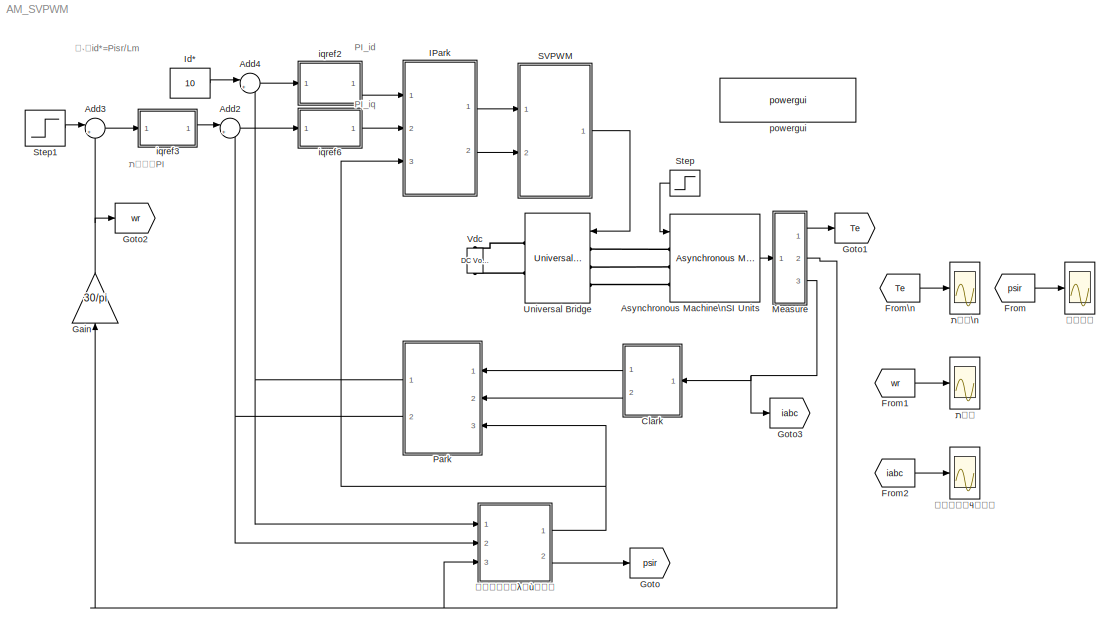
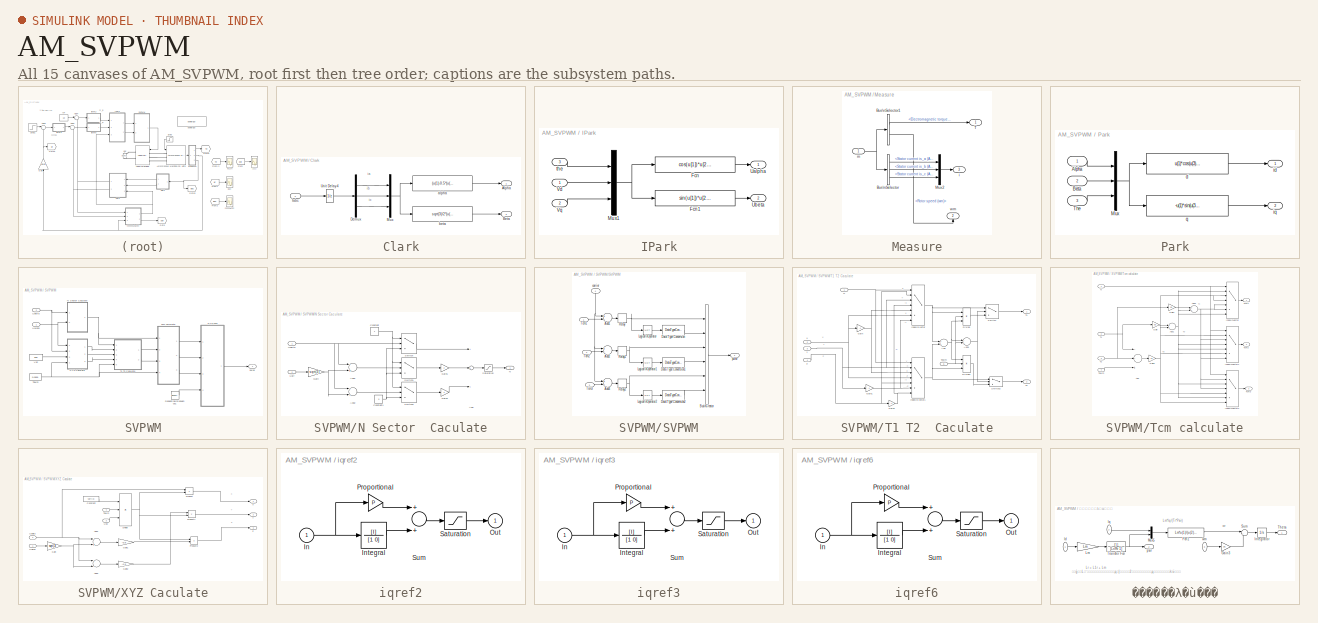
[diagram: thumbnail index - all 15 canvases of the model, root first then tree order]
MODEL AM_SVPWM
KIND model
BLOCK [Sum] Add2
  IconShape = round
  InputSameDT = off
  Inputs = |+-
  OutDataTypeStr = Inherit: Inherit via internal rule
  Ports = [2, 1]
  SID = 336
  SaturateOnIntegerOverflow = off
BLOCK [Sum] Add3
  IconShape = round
  InputSameDT = off
  Inputs = |+-
  OutDataTypeStr = Inherit: Inherit via internal rule
  Ports = [2, 1]
  SID = 337
  SaturateOnIntegerOverflow = off
BLOCK [Sum] Add4
  IconShape = round
  InputSameDT = off
  Inputs = |+-
  OutDataTypeStr = Inherit: Inherit via internal rule
  Ports = [2, 1]
  SID = 335
  SaturateOnIntegerOverflow = off
BLOCK [Reference] Asynchronous Machine\nSI Units  REF=powerlib/Machines/Asynchronous Machine\nSI Units
  Cage1 = [ 0.022 0.226/377]
  Cage2 = [ 0.022 0.226/377]
  InitialConditions = [ 1,0   0,0,0   0,0,0 ]
  IterativeModel = Trapezoidal non iterative
  Lm = 0.069
  LoadFlowParameters = 0
  MeasurementBus = off
  Mechanical = [0.19 0.005752 2]
  MechanicalLoad = Torque Tm
  NominalParameters = [3730 380 50]
  Pmec = 0
  PolePairs = 2
  Ports = [1, 1, 0, 0, 0, 3]
  PresetModel = No
  ReferenceFrame = Rotor
  Rotor = [0.816 0.002]
  RotorType = Squirrel-cage
  SID = 5
  Saturation = [9.9249,19.6672,38.0377,51.3988,69.2824,105.1337,152.5532,214.2421,303.1917;230, 322, 414, 460, 506, 552, 598, 644, 690]
  ShowDetailedParameters = on
  SimulateSaturation = off
  SourceBlock = powerlib/Machines/Asynchronous Machine\nSI Units
  SourceType = Asynchronous Machine
  Stator = [0.435 0.01]
  TsBlock = -1
  TsPowergui = 0
  Units = SI
BLOCK [SubSystem] Clark
  Ports = [1, 2]
  RequestExecContextInheritance = off
  SID = 303
  Variant = off
BLOCK [Outport] Clark/Alpha
  IconDisplay = Port number
  SID = 310
BLOCK [Outport] Clark/Beta
  IconDisplay = Port number
  Port = 2
  SID = 311
BLOCK [Demux] Clark/Demux
  DisplayOption = bar
  Outputs = 3
  Ports = [1, 3]
  SID = 313
BLOCK [Inport] Clark/Iabc
  IconDisplay = Port number
  SID = 312
BLOCK [Mux] Clark/Mux
  DisplayOption = bar
  Inputs = 3
  Ports = [3, 1]
  SID = 307
BLOCK [UnitDelay] Clark/Unit Delay4
  SID = 314
  SampleTime = 1e-05
BLOCK [Fcn] Clark/alpha
  Expr = (u(1)-0.5*(u(2)+u(3)))*2/3
  SID = 308
BLOCK [Fcn] Clark/beta
  Expr = sqrt(3)/2*(u(2)-u(3))*2/3
  SID = 309
BLOCK [From] From
  GotoTag = psir
  SID = 424
BLOCK [From] From1
  GotoTag = wr
  SID = 430
BLOCK [From] From2
  GotoTag = iabc
  SID = 433
BLOCK [From] From\n
  GotoTag = Te
  SID = 428
BLOCK [Gain] Gain
  Gain = 30/pi
  SID = 21
  SaturateOnIntegerOverflow = off
BLOCK [Goto] Goto
  GotoTag = psir
  SID = 421
BLOCK [Goto] Goto1
  GotoTag = Te
  SID = 427
BLOCK [Goto] Goto2
  GotoTag = wr
  SID = 432
BLOCK [Goto] Goto3
  GotoTag = iabc
  SID = 438
BLOCK [SubSystem] IPark
  Ports = [3, 2]
  RequestExecContextInheritance = off
  SID = 291
  Variant = off
BLOCK [Fcn] IPark/Fcn
  Expr = cos(u[1])*u[2]-sin(u[1])*u[3]
  SID = 294
BLOCK [Fcn] IPark/Fcn1
  Expr = sin(u[1])*u[2]+cos(u[1])*u[3]
  SID = 295
BLOCK [Mux] IPark/Mux1
  DisplayOption = bar
  Inputs = 3
  Ports = [3, 1]
  SID = 297
BLOCK [Outport] IPark/Ualpha
  IconDisplay = Port number
  SID = 298
BLOCK [Outport] IPark/Ubeta
  IconDisplay = Port number
  Port = 2
  SID = 299
BLOCK [Inport] IPark/Vd
  IconDisplay = Port number
  SID = 293
BLOCK [Inport] IPark/Vq
  IconDisplay = Port number
  Port = 2
  SID = 292
BLOCK [Inport] IPark/the
  IconDisplay = Port number
  Port = 3
  SID = 300
BLOCK [Constant] Id*
  SID = 36
  Value = 10
BLOCK [SubSystem] Measure
  Ports = [1, 3]
  RequestExecContextInheritance = off
  SID = 384
  Variant = off
BLOCK [BusSelector] Measure/Bus\nSelector
  OutputSignals = Stator measurements.Stator current is_a (A),Stator measurements.Stator current is_b (A),Stator measurements.Stator current is_c (A)
  Ports = [1, 3]
  SID = 244
BLOCK [BusSelector] Measure/Bus\nSelector1
  OutputSignals = Mechanical.Electromagnetic torque Te (N*m),Mechanical.Rotor speed (wm)
  Ports = [1, 2]
  SID = 332
BLOCK [Mux] Measure/Mux2
  DisplayOption = bar
  Inputs = 3
  Ports = [3, 1]
  SID = 246
BLOCK [Outport] Measure/T
  IconDisplay = Port number
  SID = 386
BLOCK [Outport] Measure/i
  IconDisplay = Port number
  Port = 3
  SID = 387
BLOCK [Inport] Measure/m
  IconDisplay = Port number
  SID = 385
BLOCK [Outport] Measure/wm
  IconDisplay = Port number
  Port = 2
  SID = 388
BLOCK [SubSystem] Park
  Ports = [3, 2]
  RequestExecContextInheritance = off
  SID = 268
  Variant = off
BLOCK [Inport] Park/Alpha
  IconDisplay = Port number
  SID = 269
BLOCK [Inport] Park/Beta
  IconDisplay = Port number
  Port = 2
  SID = 270
BLOCK [Mux] Park/Mux
  DisplayOption = bar
  Inputs = 3
  Ports = [3, 1]
  SID = 272
BLOCK [Inport] Park/The
  IconDisplay = Port number
  Port = 3
  SID = 271
BLOCK [Fcn] Park/d
  Expr = u(1)*cos(u(3))+u(2)*sin(u(3))
  SID = 273
BLOCK [Outport] Park/id
  IconDisplay = Port number
  SID = 275
BLOCK [Outport] Park/iq
  IconDisplay = Port number
  Port = 2
  SID = 276
BLOCK [Fcn] Park/q
  Expr = -u(1)*sin(u(3))+u(2)*cos(u(3))
  SID = 274
BLOCK [SubSystem] SVPWM
  Ports = [2, 1]
  RequestExecContextInheritance = off
  SID = 55
  Variant = off
BLOCK [SubSystem] SVPWM/N Sector  Caculate
  Ports = [2, 1]
  RequestExecContextInheritance = off
  SID = 58
  TreatAsAtomicUnit = on
  Variant = off
BLOCK [Sum] SVPWM/N Sector  Caculate/Add
  InputSameDT = off
  Inputs = +++
  OutDataTypeStr = Inherit: Inherit via internal rule
  Ports = [3, 1]
  SID = 61
  SaturateOnIntegerOverflow = off
BLOCK [Sum] SVPWM/N Sector  Caculate/Add1
  InputSameDT = off
  Inputs = -+
  OutDataTypeStr = Inherit: Inherit via internal rule
  Ports = [2, 1]
  SID = 62
  SaturateOnIntegerOverflow = off
BLOCK [Sum] SVPWM/N Sector  Caculate/Add2
  InputSameDT = off
  Inputs = --
  OutDataTypeStr = Inherit: Inherit via internal rule
  Ports = [2, 1]
  SID = 63
  SaturateOnIntegerOverflow = off
BLOCK [Constant] SVPWM/N Sector  Caculate/Constant
  SID = 64
BLOCK [Constant] SVPWM/N Sector  Caculate/Constant1
  SID = 65
  Value = 0
BLOCK [Gain] SVPWM/N Sector  Caculate/Gain
  Gain = sqrt(3)
  OutDataTypeStr = Inherit: Inherit via internal rule
  ParamDataTypeStr = Inherit: Inherit via internal rule
  SID = 66
  SaturateOnIntegerOverflow = off
BLOCK [Gain] SVPWM/N Sector  Caculate/Gain1
  Gain = 2
  OutDataTypeStr = Inherit: Inherit via internal rule
  ParamDataTypeStr = Inherit: Inherit via internal rule
  SID = 67
  SaturateOnIntegerOverflow = off
BLOCK [Gain] SVPWM/N Sector  Caculate/Gain2
  Gain = 4
  OutDataTypeStr = Inherit: Inherit via internal rule
  ParamDataTypeStr = Inherit: Inherit via internal rule
  SID = 68
  SaturateOnIntegerOverflow = off
BLOCK [Outport] SVPWM/N Sector  Caculate/N
  IconDisplay = Port number
  SID = 73
BLOCK [Saturate] SVPWM/N Sector  Caculate/Saturation
  InputPortMap = u0
  LowerLimit = 1
  Ports = [1, 1]
  SID = 69
  UpperLimit = 6
BLOCK [Switch] SVPWM/N Sector  Caculate/Switch
  InputSameDT = off
  SID = 70
  SaturateOnIntegerOverflow = off
BLOCK [Switch] SVPWM/N Sector  Caculate/Switch1
  InputSameDT = off
  SID = 71
  SaturateOnIntegerOverflow = off
BLOCK [Switch] SVPWM/N Sector  Caculate/Switch2
  InputSameDT = off
  SID = 72
  SaturateOnIntegerOverflow = off
BLOCK [Inport] SVPWM/N Sector  Caculate/Ualf
  IconDisplay = Port number
  Port = 2
  SID = 60
BLOCK [Inport] SVPWM/N Sector  Caculate/Ubelta
  IconDisplay = Port number
  SID = 59
BLOCK [Reference] SVPWM/Repeating\nSequence1  REF=simulink/Sources/Repeating\nSequence
  Ports = [0, 1]
  SID = 74
  SourceBlock = simulink/Sources/Repeating\nSequence
  SourceType = Repeating table
  rep_seq_t = [0 0.00005 0.0001]
  rep_seq_y = [0 0.00005 0]
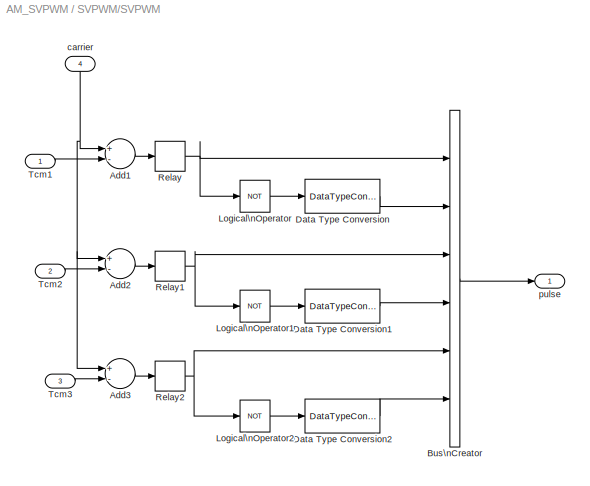
BLOCK [SubSystem] SVPWM/SVPWM
  Ports = [4, 1]
  RequestExecContextInheritance = off
  SID = 75
  TreatAsAtomicUnit = on
  Variant = off
BLOCK [Sum] SVPWM/SVPWM/Add1
  InputSameDT = off
  Inputs = +-
  OutDataTypeStr = Inherit: Inherit via internal rule
  Ports = [2, 1]
  SID = 80
  SaturateOnIntegerOverflow = off
BLOCK [Sum] SVPWM/SVPWM/Add2
  InputSameDT = off
  Inputs = +-
  OutDataTypeStr = Inherit: Inherit via internal rule
  Ports = [2, 1]
  SID = 81
  SaturateOnIntegerOverflow = off
BLOCK [Sum] SVPWM/SVPWM/Add3
  InputSameDT = off
  Inputs = +-
  OutDataTypeStr = Inherit: Inherit via internal rule
  Ports = [2, 1]
  SID = 82
  SaturateOnIntegerOverflow = off
BLOCK [BusCreator] SVPWM/SVPWM/Bus\nCreator
  DisplayOption = bar
  InheritFromInputs = on
  Inputs = 6
  Ports = [6, 1]
  SID = 83
BLOCK [DataTypeConversion] SVPWM/SVPWM/Data Type Conversion
  OutDataTypeStr = double
  RndMeth = Floor
  SID = 84
  SaturateOnIntegerOverflow = off
BLOCK [DataTypeConversion] SVPWM/SVPWM/Data Type Conversion1
  OutDataTypeStr = double
  RndMeth = Floor
  SID = 85
  SaturateOnIntegerOverflow = off
BLOCK [DataTypeConversion] SVPWM/SVPWM/Data Type Conversion2
  OutDataTypeStr = double
  RndMeth = Floor
  SID = 86
  SaturateOnIntegerOverflow = off
BLOCK [Logic] SVPWM/SVPWM/Logical\nOperator
  AllPortsSameDT = off
  Operator = NOT
  OutDataTypeStr = boolean
  Ports = [1, 1]
  SID = 87
BLOCK [Logic] SVPWM/SVPWM/Logical\nOperator1
  AllPortsSameDT = off
  Operator = NOT
  OutDataTypeStr = boolean
  Ports = [1, 1]
  SID = 88
BLOCK [Logic] SVPWM/SVPWM/Logical\nOperator2
  AllPortsSameDT = off
  Operator = NOT
  OutDataTypeStr = boolean
  Ports = [1, 1]
  SID = 89
BLOCK [Relay] SVPWM/SVPWM/Relay
  InputProcessing = Elements as channels (sample based)
  SID = 90
BLOCK [Relay] SVPWM/SVPWM/Relay1
  InputProcessing = Elements as channels (sample based)
  SID = 91
BLOCK [Relay] SVPWM/SVPWM/Relay2
  InputProcessing = Elements as channels (sample based)
  SID = 92
BLOCK [Inport] SVPWM/SVPWM/Tcm1
  IconDisplay = Port number
  SID = 76
BLOCK [Inport] SVPWM/SVPWM/Tcm2
  IconDisplay = Port number
  Port = 2
  SID = 77
BLOCK [Inport] SVPWM/SVPWM/Tcm3
  IconDisplay = Port number
  Port = 3
  SID = 78
BLOCK [Inport] SVPWM/SVPWM/carrier
  IconDisplay = Port number
  Port = 4
  SID = 79
BLOCK [Outport] SVPWM/SVPWM/pulse
  IconDisplay = Port number
  SID = 93
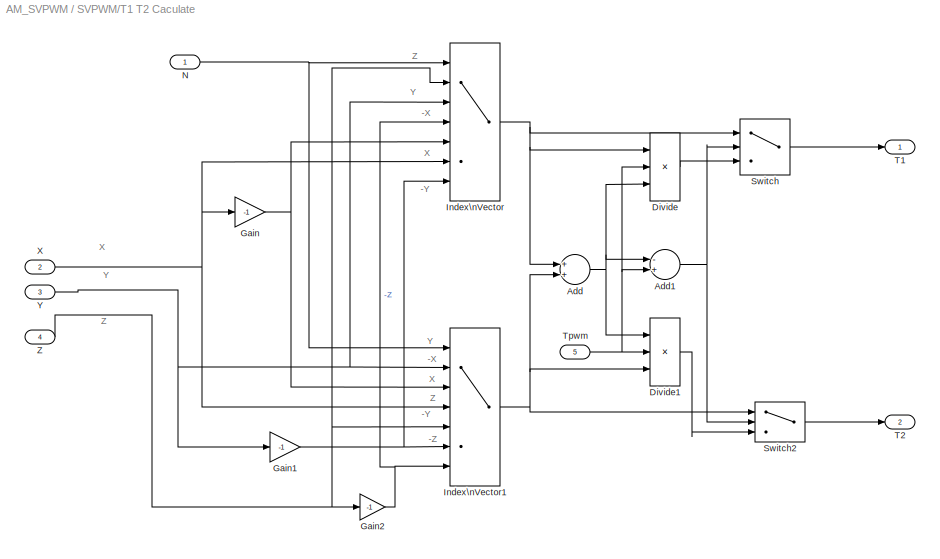
BLOCK [SubSystem] SVPWM/T1 T2  Caculate
  Ports = [5, 2]
  RequestExecContextInheritance = off
  SID = 94
  TreatAsAtomicUnit = on
  Variant = off
BLOCK [Sum] SVPWM/T1 T2  Caculate/Add
  InputSameDT = off
  OutDataTypeStr = Inherit: Inherit via internal rule
  Ports = [2, 1]
  SID = 100
  SaturateOnIntegerOverflow = off
BLOCK [Sum] SVPWM/T1 T2  Caculate/Add1
  InputSameDT = off
  Inputs = -+
  OutDataTypeStr = Inherit: Inherit via internal rule
  Ports = [2, 1]
  SID = 101
  SaturateOnIntegerOverflow = off
BLOCK [Product] SVPWM/T1 T2  Caculate/Divide
  InputSameDT = off
  Inputs = **/
  OutDataTypeStr = Inherit: Inherit via internal rule
  Ports = [3, 1]
  RndMeth = Floor
  SID = 102
  SaturateOnIntegerOverflow = off
BLOCK [Product] SVPWM/T1 T2  Caculate/Divide1
  InputSameDT = off
  Inputs = /**
  OutDataTypeStr = Inherit: Inherit via internal rule
  Ports = [3, 1]
  RndMeth = Floor
  SID = 103
  SaturateOnIntegerOverflow = off
BLOCK [Gain] SVPWM/T1 T2  Caculate/Gain
  Gain = -1
  OutDataTypeStr = Inherit: Inherit via internal rule
  ParamDataTypeStr = Inherit: Inherit via internal rule
  SID = 104
  SaturateOnIntegerOverflow = off
BLOCK [Gain] SVPWM/T1 T2  Caculate/Gain1
  Gain = -1
  OutDataTypeStr = Inherit: Inherit via internal rule
  ParamDataTypeStr = Inherit: Inherit via internal rule
  SID = 105
  SaturateOnIntegerOverflow = off
BLOCK [Gain] SVPWM/T1 T2  Caculate/Gain2
  Gain = -1
  OutDataTypeStr = Inherit: Inherit via internal rule
  ParamDataTypeStr = Inherit: Inherit via internal rule
  SID = 106
  SaturateOnIntegerOverflow = off
BLOCK [MultiPortSwitch] SVPWM/T1 T2  Caculate/Index\nVector
  InputSameDT = off
  Inputs = 6
  Ports = [7, 1]
  SID = 107
  SaturateOnIntegerOverflow = off
BLOCK [MultiPortSwitch] SVPWM/T1 T2  Caculate/Index\nVector1
  InputSameDT = off
  Inputs = 6
  Ports = [7, 1]
  SID = 108
  SaturateOnIntegerOverflow = off
BLOCK [Inport] SVPWM/T1 T2  Caculate/N
  IconDisplay = Port number
  SID = 95
BLOCK [Switch] SVPWM/T1 T2  Caculate/Switch
  Criteria = u2 > Threshold
  InputSameDT = off
  SID = 109
  SaturateOnIntegerOverflow = off
BLOCK [Switch] SVPWM/T1 T2  Caculate/Switch2
  Criteria = u2 > Threshold
  InputSameDT = off
  SID = 110
  SaturateOnIntegerOverflow = off
BLOCK [Outport] SVPWM/T1 T2  Caculate/T1
  IconDisplay = Port number
  SID = 111
BLOCK [Outport] SVPWM/T1 T2  Caculate/T2
  IconDisplay = Port number
  Port = 2
  SID = 112
BLOCK [Inport] SVPWM/T1 T2  Caculate/Tpwm
  IconDisplay = Port number
  Port = 5
  SID = 99
BLOCK [Inport] SVPWM/T1 T2  Caculate/X
  IconDisplay = Port number
  Port = 2
  SID = 96
BLOCK [Inport] SVPWM/T1 T2  Caculate/Y
  IconDisplay = Port number
  Port = 3
  SID = 97
BLOCK [Inport] SVPWM/T1 T2  Caculate/Z
  IconDisplay = Port number
  Port = 4
  SID = 98
BLOCK [SubSystem] SVPWM/Tcm calculate
  Ports = [4, 3]
  RequestExecContextInheritance = off
  SID = 127
  TreatAsAtomicUnit = on
  Variant = off
BLOCK [Sum] SVPWM/Tcm calculate/Add
  InputSameDT = off
  Inputs = --+
  OutDataTypeStr = Inherit: Inherit via internal rule
  Ports = [3, 1]
  SID = 132
  SaturateOnIntegerOverflow = off
BLOCK [Sum] SVPWM/Tcm calculate/Add1
  InputSameDT = off
  OutDataTypeStr = Inherit: Inherit via internal rule
  Ports = [2, 1]
  SID = 133
  SaturateOnIntegerOverflow = off
BLOCK [Sum] SVPWM/Tcm calculate/Add2
  InputSameDT = off
  OutDataTypeStr = Inherit: Inherit via internal rule
  Ports = [2, 1]
  SID = 134
  SaturateOnIntegerOverflow = off
BLOCK [Gain] SVPWM/Tcm calculate/Gain
  Gain = 0.5
  OutDataTypeStr = Inherit: Inherit via internal rule
  ParamDataTypeStr = Inherit: Inherit via internal rule
  SID = 135
  SaturateOnIntegerOverflow = off
BLOCK [Gain] SVPWM/Tcm calculate/Gain1
  Gain = 0.5
  OutDataTypeStr = Inherit: Inherit via internal rule
  ParamDataTypeStr = Inherit: Inherit via internal rule
  SID = 136
  SaturateOnIntegerOverflow = off
BLOCK [Gain] SVPWM/Tcm calculate/Gain2
  Gain = 1/4
  OutDataTypeStr = Inherit: Inherit via internal rule
  ParamDataTypeStr = Inherit: Inherit via internal rule
  SID = 137
  SaturateOnIntegerOverflow = off
BLOCK [MultiPortSwitch] SVPWM/Tcm calculate/Index\nVector
  InputSameDT = off
  Inputs = 6
  Ports = [7, 1]
  SID = 138
  SaturateOnIntegerOverflow = off
BLOCK [MultiPortSwitch] SVPWM/Tcm calculate/Index\nVector1
  InputSameDT = off
  Inputs = 6
  Ports = [7, 1]
  SID = 139
  SaturateOnIntegerOverflow = off
BLOCK [MultiPortSwitch] SVPWM/Tcm calculate/Index\nVector2
  InputSameDT = off
  Inputs = 6
  Ports = [7, 1]
  SID = 140
  SaturateOnIntegerOverflow = off
BLOCK [Inport] SVPWM/Tcm calculate/N
  IconDisplay = Port number
  SID = 128
BLOCK [Inport] SVPWM/Tcm calculate/T1
  IconDisplay = Port number
  Port = 2
  SID = 129
BLOCK [Inport] SVPWM/Tcm calculate/T2
  IconDisplay = Port number
  Port = 3
  SID = 130
BLOCK [Outport] SVPWM/Tcm calculate/Tcm1
  IconDisplay = Port number
  SID = 141
BLOCK [Outport] SVPWM/Tcm calculate/Tcm2
  IconDisplay = Port number
  Port = 2
  SID = 142
BLOCK [Outport] SVPWM/Tcm calculate/Tcm3
  IconDisplay = Port number
  Port = 3
  SID = 143
BLOCK [Inport] SVPWM/Tcm calculate/Tpwm
  IconDisplay = Port number
  Port = 4
  SID = 131
BLOCK [Constant] SVPWM/Tpwm
  SID = 147
  Value = 0.0001
BLOCK [Inport] SVPWM/Ualpha
  IconDisplay = Port number
  SID = 56
BLOCK [Inport] SVPWM/Ubelta
  IconDisplay = Port number
  Port = 2
  SID = 57
BLOCK [Constant] SVPWM/Vdc
  SID = 148
  Value = 600
BLOCK [SubSystem] SVPWM/XYZ Caculate
  Ports = [4, 3]
  RequestExecContextInheritance = off
  SID = 149
  TreatAsAtomicUnit = on
  Variant = off
BLOCK [Sum] SVPWM/XYZ Caculate/Add1
  InputSameDT = off
  Inputs = -+
  OutDataTypeStr = Inherit: Inherit via internal rule
  Ports = [2, 1]
  SID = 154
  SaturateOnIntegerOverflow = off
BLOCK [Sum] SVPWM/XYZ Caculate/Add2
  InputSameDT = off
  Inputs = --
  OutDataTypeStr = Inherit: Inherit via internal rule
  Ports = [2, 1]
  SID = 155
  SaturateOnIntegerOverflow = off
BLOCK [Constant] SVPWM/XYZ Caculate/Constant
  SID = 156
  Value = sqrt(3)
BLOCK [Product] SVPWM/XYZ Caculate/Divide
  InputSameDT = off
  Inputs = **/
  OutDataTypeStr = Inherit: Inherit via internal rule
  Ports = [3, 1]
  RndMeth = Floor
  SID = 157
  SaturateOnIntegerOverflow = off
BLOCK [Gain] SVPWM/XYZ Caculate/Gain
  Gain = sqrt(3)
  OutDataTypeStr = Inherit: Inherit via internal rule
  ParamDataTypeStr = Inherit: Inherit via internal rule
  SID = 158
  SaturateOnIntegerOverflow = off
BLOCK [Gain] SVPWM/XYZ Caculate/Gain1
  Gain = -0.5
  OutDataTypeStr = Inherit: Inherit via internal rule
  ParamDataTypeStr = Inherit: Inherit via internal rule
  SID = 159
  SaturateOnIntegerOverflow = off
BLOCK [Gain] SVPWM/XYZ Caculate/Gain2
  Gain = -0.5
  OutDataTypeStr = Inherit: Inherit via internal rule
  ParamDataTypeStr = Inherit: Inherit via internal rule
  SID = 160
  SaturateOnIntegerOverflow = off
BLOCK [Product] SVPWM/XYZ Caculate/Product
  InputSameDT = off
  OutDataTypeStr = Inherit: Inherit via internal rule
  Ports = [2, 1]
  RndMeth = Floor
  SID = 161
  SaturateOnIntegerOverflow = off
BLOCK [Product] SVPWM/XYZ Caculate/Product1
  InputSameDT = off
  OutDataTypeStr = Inherit: Inherit via internal rule
  Ports = [2, 1]
  RndMeth = Floor
  SID = 162
  SaturateOnIntegerOverflow = off
BLOCK [Product] SVPWM/XYZ Caculate/Product2
  InputSameDT = off
  OutDataTypeStr = Inherit: Inherit via internal rule
  Ports = [2, 1]
  RndMeth = Floor
  SID = 163
  SaturateOnIntegerOverflow = off
BLOCK [Inport] SVPWM/XYZ Caculate/Tpwm
  IconDisplay = Port number
  Port = 4
  SID = 153
BLOCK [Inport] SVPWM/XYZ Caculate/Ualfpa
  IconDisplay = Port number
  SID = 150
BLOCK [Inport] SVPWM/XYZ Caculate/Ubelta
  IconDisplay = Port number
  Port = 2
  SID = 151
BLOCK [Inport] SVPWM/XYZ Caculate/Udc
  IconDisplay = Port number
  Port = 3
  SID = 152
BLOCK [Outport] SVPWM/XYZ Caculate/X
  IconDisplay = Port number
  SID = 164
BLOCK [Outport] SVPWM/XYZ Caculate/Y
  IconDisplay = Port number
  Port = 2
  SID = 165
BLOCK [Outport] SVPWM/XYZ Caculate/Z
  IconDisplay = Port number
  Port = 3
  SID = 166
BLOCK [Outport] SVPWM/pulse
  IconDisplay = Port number
  SID = 170
BLOCK [Step] Step
  After = 20
  SID = 179
  SampleTime = 0
  Time = 0.5
BLOCK [Step] Step1
  After = 1000
  Before = 1000
  SID = 182
  SampleTime = 0
  Time = 0
BLOCK [Reference] Universal Bridge  REF=powerlib/Power\nElectronics/Universal Bridge
  Arms = 3
  Device = IGBT / Diodes
  ForwardVoltage = 0
  ForwardVoltages = [  0  0  ]
  GTOparameters = [ 10e-6 , 20e-6 ]
  IGBTparameters = [ 1e-6 , 2e-6 ]
  Lon = 0
  Measurements = None
  Measurements_2 = None
  Ports = [1, 0, 0, 0, 0, 3, 2]
  Ron = 1e-3
  SID = 301
  SnubberCapacitance = inf
  SnubberResistance = 1e5
  SourceBlock = powerlib/Power\nElectronics/Universal Bridge
  SourceType = Universal Bridge
  converterType = Rectifier
BLOCK [Reference] Vdc  REF=powerlib/Electrical\nSources/DC Voltage Source
  Amplitude = 600
  Measurements = None
  Ports = [0, 0, 0, 0, 0, 1, 1]
  SID = 302
  SourceBlock = powerlib/Electrical\nSources/DC Voltage Source
  SourceType = DC Voltage Source
BLOCK [SubSystem] iqref2
  Ports = [1, 1]
  RequestExecContextInheritance = off
  SID = 185
  Variant = off
BLOCK [Inport] iqref2/In
  IconDisplay = Port number
  SID = 186
BLOCK [TransferFcn] iqref2/Integral
  Denominator = [1 0]
  Numerator = [I]
  SID = 187
BLOCK [Outport] iqref2/Out
  IconDisplay = Port number
  InitialOutput = 0
  SID = 191
BLOCK [Gain] iqref2/Proportional
  Gain = P
  SID = 188
BLOCK [Saturate] iqref2/Saturation
  InputPortMap = u0
  LowerLimit = min
  Ports = [1, 1]
  SID = 189
  UpperLimit = max
BLOCK [Sum] iqref2/Sum
  Ports = [2, 1]
  SID = 190
BLOCK [SubSystem] iqref3
  Ports = [1, 1]
  RequestExecContextInheritance = off
  SID = 192
  Variant = off
BLOCK [Inport] iqref3/In
  IconDisplay = Port number
  SID = 193
BLOCK [TransferFcn] iqref3/Integral
  Denominator = [1 0]
  Numerator = [I]
  SID = 194
BLOCK [Outport] iqref3/Out
  IconDisplay = Port number
  InitialOutput = 0
  SID = 198
BLOCK [Gain] iqref3/Proportional
  Gain = P
  SID = 195
BLOCK [Saturate] iqref3/Saturation
  InputPortMap = u0
  LowerLimit = min
  Ports = [1, 1]
  SID = 196
  UpperLimit = max
BLOCK [Sum] iqref3/Sum
  Ports = [2, 1]
  SID = 197
BLOCK [SubSystem] iqref6
  Ports = [1, 1]
  RequestExecContextInheritance = off
  SID = 199
  Variant = off
BLOCK [Inport] iqref6/In
  IconDisplay = Port number
  SID = 200
BLOCK [TransferFcn] iqref6/Integral
  Denominator = [1 0]
  Numerator = [I]
  SID = 201
BLOCK [Outport] iqref6/Out
  IconDisplay = Port number
  InitialOutput = 0
  SID = 205
BLOCK [Gain] iqref6/Proportional
  Gain = P
  SID = 202
BLOCK [Saturate] iqref6/Saturation
  InputPortMap = u0
  LowerLimit = min
  Ports = [1, 1]
  SID = 203
  UpperLimit = max
BLOCK [Sum] iqref6/Sum
  Ports = [2, 1]
  SID = 204
BLOCK [Reference] powergui  REF=powerlib/powergui
  DisableRonSwitches = off
  DisableSnubberDevices = off
  DisableVfSwitches = off
  DisplayEquations = off
  DisplayStyle = 1
  EnableUseOfTLC = off
  ErrMax = 1e-4
  ExternalGateDelay = off
  Frange = [0:2:500]
  FreqAxis = off
  FunctionMessages = off
  HookPort = off
  Interpol = off
  Iterations = 50
  MaxFrequency = 1000
  Pbase = 100e6
  Ports = []
  Priority = 1
  ResistiveCurrentMeasurement = off
  RestoreLinks = warning
  RmsSteady = 1
  SID = 206
  SPID = off
  SampleTime = 1e-5
  ShowGrid = off
  SolverType = Tustin
  SourceBlock = powerlib/powergui
  SourceType = PSB option menu block
  StartTime = 0.0
  SwTol = 0
  Ts = 0
  UnitsV = kV
  UnitsW = MW
  Xlog = on
  Ylog = off
  ZoomFFT = on
  buscounter = 0
  cycles = 1
  display = off
  echomessages = off
  frequency = 60
  frequencyindice = 0
  frequencyindicesteady = 1
  fundamental = 60
  methode = off
  save = off
  structure = 0
  variable = ZData
  x0status = blocks
BLOCK [Scope] ת��
  Ports = [1]
  SID = 436
  ScopeSpecificationString = Simulink.scopes.TimeScopeBlockCfg('CurrentConfiguration', extmgr.ConfigurationSet(extmgr.Configuration('Core','General UI',true,'FigureColor',[1 1 1]),extmgr.Configuration('Core','Source UI',true),extmgr.Configuration('Sources','WiredSimulink',true,'DataLoggingVariableName','ScopeData2','DataLoggingSaveFormat','StructureWithTime','DataLoggingDecimation','1','DataLoggingDecimateData',true),extmgr.C...<+2568ch>
BLOCK [Scope] ת��\n
  Ports = [1]
  SID = 429
  ScopeSpecificationString = Simulink.scopes.TimeScopeBlockCfg('CurrentConfiguration', extmgr.ConfigurationSet(extmgr.Configuration('Core','General UI',true,'FigureColor',[1 1 1]),extmgr.Configuration('Core','Source UI',true),extmgr.Configuration('Sources','WiredSimulink',true,'DataLoggingVariableName','ScopeData1','DataLoggingSaveFormat','StructureWithTime','DataLoggingDecimation','1','DataLoggingDecimateData',true),extmgr.C...<+2602ch>
BLOCK [Scope] ���ඨ�ӵ���
  Ports = [1]
  SID = 437
  ScopeSpecificationString = Simulink.scopes.TimeScopeBlockCfg('CurrentConfiguration', extmgr.ConfigurationSet(extmgr.Configuration('Core','General UI',true,'FigureColor',[1 1 1]),extmgr.Configuration('Core','Source UI',true),extmgr.Configuration('Sources','WiredSimulink',true,'DataLoggingVariableName','ScopeData3','DataLoggingSaveFormat','StructureWithTime','DataLoggingDecimation','1','DataLoggingDecimateData',true),extmgr.C...<+2574ch>
BLOCK [Scope] ����
  Ports = [1]
  SID = 435
  ScopeSpecificationString = Simulink.scopes.TimeScopeBlockCfg('CurrentConfiguration', extmgr.ConfigurationSet(extmgr.Configuration('Core','General UI',true,'FigureColor',[1 1 1]),extmgr.Configuration('Core','Source UI',true),extmgr.Configuration('Sources','WiredSimulink',true,'DataLoggingSaveFormat','StructureWithTime','DataLoggingDecimation','1','DataLoggingDecimateData',true),extmgr.Configuration('Visuals','Time Domain',tr...<+2500ch>
BLOCK [SubSystem] ������λ�ù���
  Ports = [3, 2]
  RequestExecContextInheritance = off
  SID = 389
  Variant = off
BLOCK [Fcn] ������λ�ù���/Fcn1
  Expr = Lm*u(1)/(u(2)*(Lr/Rr)+1e-7)
  SID = 393
BLOCK [Gain] ������λ�ù���/Gain3
  Gain = Pn
  OutDataTypeStr = Inherit: Inherit via internal rule
  ParamDataTypeStr = Inherit: Inherit via internal rule
  SID = 394
  SaturateOnIntegerOverflow = off
BLOCK [Inport] ������λ�ù���/Id
  IconDisplay = Port number
  SID = 390
BLOCK [Integrator] ������λ�ù���/Integrator
  Ports = [1, 1]
  SID = 395
BLOCK [Inport] ������λ�ù���/Iq
  IconDisplay = Port number
  Port = 2
  SID = 391
BLOCK [Gain] ������λ�ù���/Lm
  Gain = Lm
  OutDataTypeStr = Inherit: Inherit via internal rule
  ParamDataTypeStr = Inherit: Inherit via internal rule
  SID = 396
  SaturateOnIntegerOverflow = off
BLOCK [Mux] ������λ�ù���/Mux5
  DisplayOption = bar
  Inputs = 2
  Ports = [2, 1]
  SID = 397
BLOCK [Sum] ������λ�ù���/Sum
  IconShape = round
  InputSameDT = off
  Inputs = |++
  OutDataTypeStr = Inherit: Inherit via internal rule
  Ports = [2, 1]
  SID = 398
  SaturateOnIntegerOverflow = off
BLOCK [Outport] ������λ�ù���/Theta
  IconDisplay = Port number
  SID = 400
BLOCK [TransferFcn] ������λ�ù���/Transfer Fcn
  Denominator = [Lr/Rr 1]
  SID = 399
BLOCK [Outport] ������λ�ù���/psir
  IconDisplay = Port number
  Port = 2
  SID = 401
BLOCK [Inport] ������λ�ù���/wm
  IconDisplay = Port number
  Port = 3
  SID = 392
ANNOTATION (root): PI_id
ANNOTATION (root): PI_iq
ANNOTATION (root): ת�ٻ�PI
ANNOTATION (root): �˴�id*=Pisr/Lm
ANNOTATION Clark: ia
ANNOTATION Clark: ib
ANNOTATION Clark: ic
ANNOTATION SVPWM/T1 T2  Caculate: -X
ANNOTATION SVPWM/T1 T2  Caculate: -Y
ANNOTATION SVPWM/T1 T2  Caculate: -Z
ANNOTATION SVPWM/T1 T2  Caculate: X
ANNOTATION SVPWM/T1 T2  Caculate: Y
ANNOTATION SVPWM/T1 T2  Caculate: Z
ANNOTATION SVPWM/Tcm calculate: Ta
ANNOTATION SVPWM/Tcm calculate: Tb
ANNOTATION SVPWM/Tcm calculate: Tc
ANNOTATION SVPWM/XYZ Caculate: X
ANNOTATION SVPWM/XYZ Caculate: Y
ANNOTATION SVPWM/XYZ Caculate: Z
ANNOTATION ������λ�ù���: \n \n ��ģ��Ĺ�ʽ����ԭ���������д�ĵ�����2<unrecoverable-encoding: 71 bytes efbfbdefbfbdefbfbdefbfbd... md5=85ba3390>
ANNOTATION ������λ�ù���: Lm*Iq/(Tr*Psir)
ANNOTATION ������λ�ù���: Lr = L1r + Lm
ANNOTATION ������λ�ù���: wr
LINE Add2:1 -> iqref6:1
LINE Add3:1 -> iqref3:1
LINE Add4:1 -> iqref2:1
LINE Asynchronous Machine\nSI Units:1 -> Measure:1
LINE Clark/Demux:1 -> Clark/Mux:1
LINE Clark/Demux:2 -> Clark/Mux:2
LINE Clark/Demux:3 -> Clark/Mux:3
LINE Clark/Iabc:1 -> Clark/Unit Delay4:1
NET Clark/Mux:1 -> Clark/alpha:1, Clark/beta:1
LINE Clark/Unit Delay4:1 -> Clark/Demux:1
LINE Clark/alpha:1 -> Clark/Alpha:1
LINE Clark/beta:1 -> Clark/Beta:1
LINE Clark:1 -> Park:1
LINE Clark:2 -> Park:2
LINE From1:1 -> ת��:1
LINE From2:1 -> ���ඨ�ӵ���:1
LINE From:1 -> ����:1
LINE From\n:1 -> ת��\n:1
NET Gain:1 -> Add3:2, Goto2:1
LINE IPark/Fcn1:1 -> IPark/Ubeta:1
LINE IPark/Fcn:1 -> IPark/Ualpha:1
NET IPark/Mux1:1 -> IPark/Fcn1:1, IPark/Fcn:1
LINE IPark/Vd:1 -> IPark/Mux1:2
LINE IPark/Vq:1 -> IPark/Mux1:3
LINE IPark/the:1 -> IPark/Mux1:1
LINE IPark:1 -> SVPWM:1
LINE IPark:2 -> SVPWM:2
LINE Id*:1 -> Add4:1
LINE Measure/Bus\nSelector1:1 -> Measure/T:1
LINE Measure/Bus\nSelector1:2 -> Measure/wm:1
LINE Measure/Bus\nSelector:1 -> Measure/Mux2:1
LINE Measure/Bus\nSelector:2 -> Measure/Mux2:2
LINE Measure/Bus\nSelector:3 -> Measure/Mux2:3
LINE Measure/Mux2:1 -> Measure/i:1
NET Measure/m:1 -> Measure/Bus\nSelector1:1, Measure/Bus\nSelector:1
LINE Measure:1 -> Goto1:1
NET Measure:2 -> Gain:1, ������λ�ù���:3
NET Measure:3 -> Clark:1, Goto3:1
LINE Park/Alpha:1 -> Park/Mux:1
LINE Park/Beta:1 -> Park/Mux:2
NET Park/Mux:1 -> Park/d:1, Park/q:1
LINE Park/The:1 -> Park/Mux:3
LINE Park/d:1 -> Park/id:1
LINE Park/q:1 -> Park/iq:1
NET Park:1 -> Add4:2, ������λ�ù���:1
NET Park:2 -> Add2:2, ������λ�ù���:2
LINE SVPWM/N Sector  Caculate/Add1:1 -> SVPWM/N Sector  Caculate/Switch1:2
LINE SVPWM/N Sector  Caculate/Add2:1 -> SVPWM/N Sector  Caculate/Switch2:2
LINE SVPWM/N Sector  Caculate/Add:1 -> SVPWM/N Sector  Caculate/Saturation:1
NET SVPWM/N Sector  Caculate/Constant1:1 -> SVPWM/N Sector  Caculate/Switch1:3, SVPWM/N Sector  Caculate/Switch2:3, SVPWM/N Sector  Caculate/Switch:3
NET SVPWM/N Sector  Caculate/Constant:1 -> SVPWM/N Sector  Caculate/Switch1:1, SVPWM/N Sector  Caculate/Switch2:1, SVPWM/N Sector  Caculate/Switch:1
LINE SVPWM/N Sector  Caculate/Gain1:1 -> SVPWM/N Sector  Caculate/Add:2
LINE SVPWM/N Sector  Caculate/Gain2:1 -> SVPWM/N Sector  Caculate/Add:3
NET SVPWM/N Sector  Caculate/Gain:1 -> SVPWM/N Sector  Caculate/Add1:2, SVPWM/N Sector  Caculate/Add2:2
LINE SVPWM/N Sector  Caculate/Saturation:1 -> SVPWM/N Sector  Caculate/N:1
LINE SVPWM/N Sector  Caculate/Switch1:1 -> SVPWM/N Sector  Caculate/Gain1:1
LINE SVPWM/N Sector  Caculate/Switch2:1 -> SVPWM/N Sector  Caculate/Gain2:1
LINE SVPWM/N Sector  Caculate/Switch:1 -> SVPWM/N Sector  Caculate/Add:1
LINE SVPWM/N Sector  Caculate/Ualf:1 -> SVPWM/N Sector  Caculate/Gain:1
NET SVPWM/N Sector  Caculate/Ubelta:1 -> SVPWM/N Sector  Caculate/Add1:1, SVPWM/N Sector  Caculate/Add2:1, SVPWM/N Sector  Caculate/Switch:2
NET SVPWM/N Sector  Caculate:1 -> SVPWM/T1 T2  Caculate:1, SVPWM/Tcm calculate:1
LINE SVPWM/Repeating\nSequence1:1 -> SVPWM/SVPWM:4
LINE SVPWM/SVPWM/Add1:1 -> SVPWM/SVPWM/Relay:1
LINE SVPWM/SVPWM/Add2:1 -> SVPWM/SVPWM/Relay1:1
LINE SVPWM/SVPWM/Add3:1 -> SVPWM/SVPWM/Relay2:1
LINE SVPWM/SVPWM/Bus\nCreator:1 -> SVPWM/SVPWM/pulse:1
LINE SVPWM/SVPWM/Data Type Conversion1:1 -> SVPWM/SVPWM/Bus\nCreator:4
LINE SVPWM/SVPWM/Data Type Conversion2:1 -> SVPWM/SVPWM/Bus\nCreator:6
LINE SVPWM/SVPWM/Data Type Conversion:1 -> SVPWM/SVPWM/Bus\nCreator:2
LINE SVPWM/SVPWM/Logical\nOperator1:1 -> SVPWM/SVPWM/Data Type Conversion1:1
LINE SVPWM/SVPWM/Logical\nOperator2:1 -> SVPWM/SVPWM/Data Type Conversion2:1
LINE SVPWM/SVPWM/Logical\nOperator:1 -> SVPWM/SVPWM/Data Type Conversion:1
NET SVPWM/SVPWM/Relay1:1 -> SVPWM/SVPWM/Bus\nCreator:3, SVPWM/SVPWM/Logical\nOperator1:1
NET SVPWM/SVPWM/Relay2:1 -> SVPWM/SVPWM/Bus\nCreator:5, SVPWM/SVPWM/Logical\nOperator2:1
NET SVPWM/SVPWM/Relay:1 -> SVPWM/SVPWM/Bus\nCreator:1, SVPWM/SVPWM/Logical\nOperator:1
LINE SVPWM/SVPWM/Tcm1:1 -> SVPWM/SVPWM/Add1:2
LINE SVPWM/SVPWM/Tcm2:1 -> SVPWM/SVPWM/Add2:2
LINE SVPWM/SVPWM/Tcm3:1 -> SVPWM/SVPWM/Add3:2
NET SVPWM/SVPWM/carrier:1 -> SVPWM/SVPWM/Add1:1, SVPWM/SVPWM/Add2:1, SVPWM/SVPWM/Add3:1
LINE SVPWM/SVPWM:1 -> SVPWM/pulse:1
NET SVPWM/T1 T2  Caculate/Add1:1 -> SVPWM/T1 T2  Caculate/Switch2:2, SVPWM/T1 T2  Caculate/Switch:2
NET SVPWM/T1 T2  Caculate/Add:1 -> SVPWM/T1 T2  Caculate/Add1:1, SVPWM/T1 T2  Caculate/Divide1:1, SVPWM/T1 T2  Caculate/Divide:3
LINE SVPWM/T1 T2  Caculate/Divide1:1 -> SVPWM/T1 T2  Caculate/Switch2:3
LINE SVPWM/T1 T2  Caculate/Divide:1 -> SVPWM/T1 T2  Caculate/Switch:3
NET SVPWM/T1 T2  Caculate/Gain1:1 -> SVPWM/T1 T2  Caculate/Index\nVector1:6, SVPWM/T1 T2  Caculate/Index\nVector:7
NET SVPWM/T1 T2  Caculate/Gain2:1 -> SVPWM/T1 T2  Caculate/Index\nVector1:7, SVPWM/T1 T2  Caculate/Index\nVector:4
NET SVPWM/T1 T2  Caculate/Gain:1 -> SVPWM/T1 T2  Caculate/Index\nVector1:3, SVPWM/T1 T2  Caculate/Index\nVector:5
NET SVPWM/T1 T2  Caculate/Index\nVector1:1 -> SVPWM/T1 T2  Caculate/Add:2, SVPWM/T1 T2  Caculate/Divide1:3, SVPWM/T1 T2  Caculate/Switch2:1
NET SVPWM/T1 T2  Caculate/Index\nVector:1 -> SVPWM/T1 T2  Caculate/Add:1, SVPWM/T1 T2  Caculate/Divide:1, SVPWM/T1 T2  Caculate/Switch:1
NET SVPWM/T1 T2  Caculate/N:1 -> SVPWM/T1 T2  Caculate/Index\nVector1:1, SVPWM/T1 T2  Caculate/Index\nVector:1
LINE SVPWM/T1 T2  Caculate/Switch2:1 -> SVPWM/T1 T2  Caculate/T2:1
LINE SVPWM/T1 T2  Caculate/Switch:1 -> SVPWM/T1 T2  Caculate/T1:1
NET SVPWM/T1 T2  Caculate/Tpwm:1 -> SVPWM/T1 T2  Caculate/Add1:2, SVPWM/T1 T2  Caculate/Divide1:2, SVPWM/T1 T2  Caculate/Divide:2
NET SVPWM/T1 T2  Caculate/X:1 -> SVPWM/T1 T2  Caculate/Gain:1, SVPWM/T1 T2  Caculate/Index\nVector1:4, SVPWM/T1 T2  Caculate/Index\nVector:6
NET SVPWM/T1 T2  Caculate/Y:1 -> SVPWM/T1 T2  Caculate/Gain1:1, SVPWM/T1 T2  Caculate/Index\nVector1:2, SVPWM/T1 T2  Caculate/Index\nVector:3
NET SVPWM/T1 T2  Caculate/Z:1 -> SVPWM/T1 T2  Caculate/Gain2:1, SVPWM/T1 T2  Caculate/Index\nVector1:5, SVPWM/T1 T2  Caculate/Index\nVector:2
LINE SVPWM/T1 T2  Caculate:1 -> SVPWM/Tcm calculate:2
LINE SVPWM/T1 T2  Caculate:2 -> SVPWM/Tcm calculate:3
NET SVPWM/Tcm calculate/Add1:1 -> SVPWM/Tcm calculate/Add2:2, SVPWM/Tcm calculate/Index\nVector1:4, SVPWM/Tcm calculate/Index\nVector1:5, SVPWM/Tcm calculate/Index\nVector2:3, SVPWM/Tcm calculate/Index\nVector2:6, SVPWM/Tcm calculate/Index\nVector:2, SVPWM/Tcm calculate/Index\nVector:7
NET SVPWM/Tcm calculate/Add2:1 -> SVPWM/Tcm calculate/Index\nVector1:3, SVPWM/Tcm calculate/Index\nVector1:7, SVPWM/Tcm calculate/Index\nVector2:2, SVPWM/Tcm calculate/Index\nVector2:4, SVPWM/Tcm calculate/Index\nVector:5, SVPWM/Tcm calculate/Index\nVector:6
LINE SVPWM/Tcm calculate/Add:1 -> SVPWM/Tcm calculate/Gain2:1
LINE SVPWM/Tcm calculate/Gain1:1 -> SVPWM/Tcm calculate/Add2:1
NET SVPWM/Tcm calculate/Gain2:1 -> SVPWM/Tcm calculate/Add1:2, SVPWM/Tcm calculate/Index\nVector1:2, SVPWM/Tcm calculate/Index\nVector1:6, SVPWM/Tcm calculate/Index\nVector2:5, SVPWM/Tcm calculate/Index\nVector2:7, SVPWM/Tcm calculate/Index\nVector:3, SVPWM/Tcm calculate/Index\nVector:4
LINE SVPWM/Tcm calculate/Gain:1 -> SVPWM/Tcm calculate/Add1:1
LINE SVPWM/Tcm calculate/Index\nVector1:1 -> SVPWM/Tcm calculate/Tcm2:1
LINE SVPWM/Tcm calculate/Index\nVector2:1 -> SVPWM/Tcm calculate/Tcm3:1
LINE SVPWM/Tcm calculate/Index\nVector:1 -> SVPWM/Tcm calculate/Tcm1:1
NET SVPWM/Tcm calculate/N:1 -> SVPWM/Tcm calculate/Index\nVector1:1, SVPWM/Tcm calculate/Index\nVector2:1, SVPWM/Tcm calculate/Index\nVector:1
NET SVPWM/Tcm calculate/T1:1 -> SVPWM/Tcm calculate/Add:1, SVPWM/Tcm calculate/Gain:1
NET SVPWM/Tcm calculate/T2:1 -> SVPWM/Tcm calculate/Add:2, SVPWM/Tcm calculate/Gain1:1
LINE SVPWM/Tcm calculate/Tpwm:1 -> SVPWM/Tcm calculate/Add:3
LINE SVPWM/Tcm calculate:1 -> SVPWM/SVPWM:1
LINE SVPWM/Tcm calculate:2 -> SVPWM/SVPWM:2
LINE SVPWM/Tcm calculate:3 -> SVPWM/SVPWM:3
NET SVPWM/Tpwm:1 -> SVPWM/T1 T2  Caculate:5, SVPWM/Tcm calculate:4, SVPWM/XYZ Caculate:4
NET SVPWM/Ualpha:1 -> SVPWM/N Sector  Caculate:2, SVPWM/XYZ Caculate:1
NET SVPWM/Ubelta:1 -> SVPWM/N Sector  Caculate:1, SVPWM/XYZ Caculate:2
LINE SVPWM/Vdc:1 -> SVPWM/XYZ Caculate:3
LINE SVPWM/XYZ Caculate/Add1:1 -> SVPWM/XYZ Caculate/Gain1:1
LINE SVPWM/XYZ Caculate/Add2:1 -> SVPWM/XYZ Caculate/Gain2:1
LINE SVPWM/XYZ Caculate/Constant:1 -> SVPWM/XYZ Caculate/Divide:1
NET SVPWM/XYZ Caculate/Divide:1 -> SVPWM/XYZ Caculate/Product1:2, SVPWM/XYZ Caculate/Product2:1, SVPWM/XYZ Caculate/Product:2
LINE SVPWM/XYZ Caculate/Gain1:1 -> SVPWM/XYZ Caculate/Product2:2
LINE SVPWM/XYZ Caculate/Gain2:1 -> SVPWM/XYZ Caculate/Product1:1
NET SVPWM/XYZ Caculate/Gain:1 -> SVPWM/XYZ Caculate/Add1:2, SVPWM/XYZ Caculate/Add2:2
LINE SVPWM/XYZ Caculate/Product1:1 -> SVPWM/XYZ Caculate/Y:1
LINE SVPWM/XYZ Caculate/Product2:1 -> SVPWM/XYZ Caculate/Z:1
LINE SVPWM/XYZ Caculate/Product:1 -> SVPWM/XYZ Caculate/X:1
LINE SVPWM/XYZ Caculate/Tpwm:1 -> SVPWM/XYZ Caculate/Divide:2
LINE SVPWM/XYZ Caculate/Ualfpa:1 -> SVPWM/XYZ Caculate/Gain:1
NET SVPWM/XYZ Caculate/Ubelta:1 -> SVPWM/XYZ Caculate/Add1:1, SVPWM/XYZ Caculate/Add2:1, SVPWM/XYZ Caculate/Product:1
LINE SVPWM/XYZ Caculate/Udc:1 -> SVPWM/XYZ Caculate/Divide:3
LINE SVPWM/XYZ Caculate:1 -> SVPWM/T1 T2  Caculate:2
LINE SVPWM/XYZ Caculate:2 -> SVPWM/T1 T2  Caculate:3
LINE SVPWM/XYZ Caculate:3 -> SVPWM/T1 T2  Caculate:4
LINE SVPWM:1 -> Universal Bridge:1
LINE Step1:1 -> Add3:1
LINE Step:1 -> Asynchronous Machine\nSI Units:1
NET iqref2/In:1 -> iqref2/Integral:1, iqref2/Proportional:1
LINE iqref2/Integral:1 -> iqref2/Sum:2
LINE iqref2/Proportional:1 -> iqref2/Sum:1
LINE iqref2/Saturation:1 -> iqref2/Out:1
LINE iqref2/Sum:1 -> iqref2/Saturation:1
LINE iqref2:1 -> IPark:1
NET iqref3/In:1 -> iqref3/Integral:1, iqref3/Proportional:1
LINE iqref3/Integral:1 -> iqref3/Sum:2
LINE iqref3/Proportional:1 -> iqref3/Sum:1
LINE iqref3/Saturation:1 -> iqref3/Out:1
LINE iqref3/Sum:1 -> iqref3/Saturation:1
LINE iqref3:1 -> Add2:1
NET iqref6/In:1 -> iqref6/Integral:1, iqref6/Proportional:1
LINE iqref6/Integral:1 -> iqref6/Sum:2
LINE iqref6/Proportional:1 -> iqref6/Sum:1
LINE iqref6/Saturation:1 -> iqref6/Out:1
LINE iqref6/Sum:1 -> iqref6/Saturation:1
LINE iqref6:1 -> IPark:2
LINE ������λ�ù���/Fcn1:1 -> ������λ�ù���/Sum:1
LINE ������λ�ù���/Gain3:1 -> ������λ�ù���/Sum:2
LINE ������λ�ù���/Id:1 -> ������λ�ù���/Lm:1
LINE ������λ�ù���/Integrator:1 -> ������λ�ù���/Theta:1
LINE ������λ�ù���/Iq:1 -> ������λ�ù���/Mux5:1
LINE ������λ�ù���/Lm:1 -> ������λ�ù���/Transfer Fcn:1
LINE ������λ�ù���/Mux5:1 -> ������λ�ù���/Fcn1:1
LINE ������λ�ù���/Sum:1 -> ������λ�ù���/Integrator:1
NET ������λ�ù���/Transfer Fcn:1 -> ������λ�ù���/Mux5:2, ������λ�ù���/psir:1
LINE ������λ�ù���/wm:1 -> ������λ�ù���/Gain3:1
NET ������λ�ù���:1 -> IPark:3, Park:3
LINE ������λ�ù���:2 -> Goto:1
PLINE Asynchronous Machine\nSI Units:LConn1 -- Universal Bridge:LConn1
PLINE Asynchronous Machine\nSI Units:LConn2 -- Universal Bridge:LConn2
PLINE Asynchronous Machine\nSI Units:LConn3 -- Universal Bridge:LConn3
PLINE Universal Bridge:RConn1 -- Vdc:RConn1
PLINE Universal Bridge:RConn2 -- Vdc:LConn1
note: NET lines group one-source signal fan-out (src -> all destinations, sorted); 1:1 wires keep LINE
